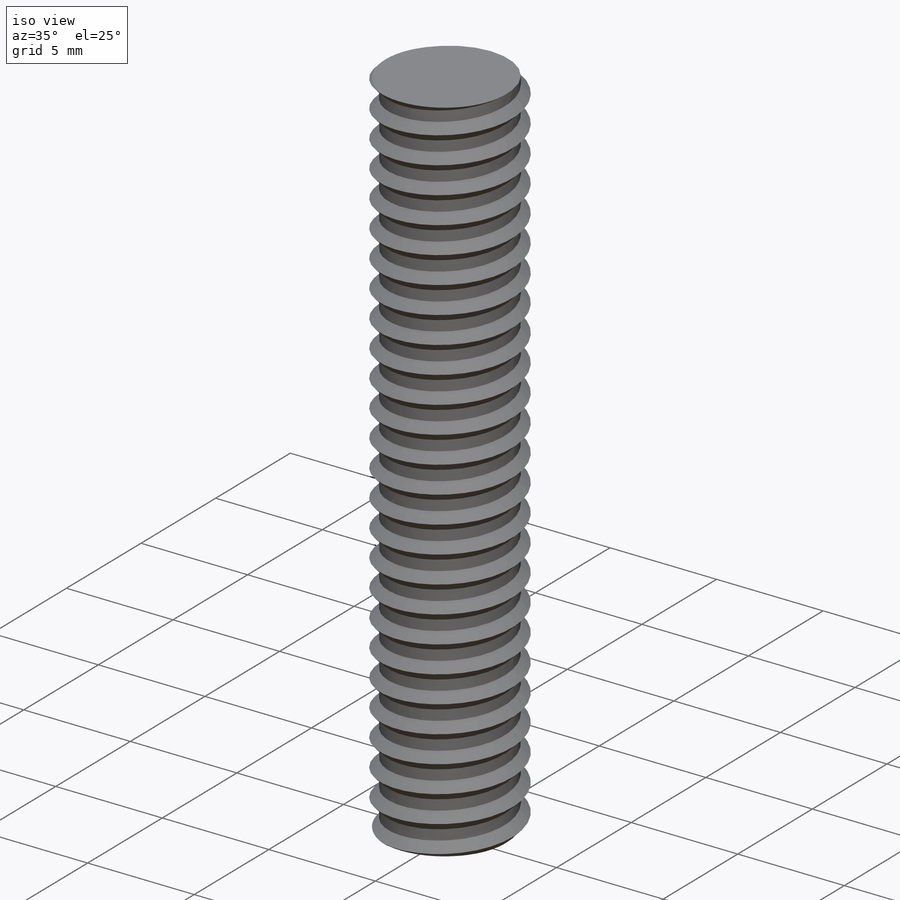
[diagram: iso view]
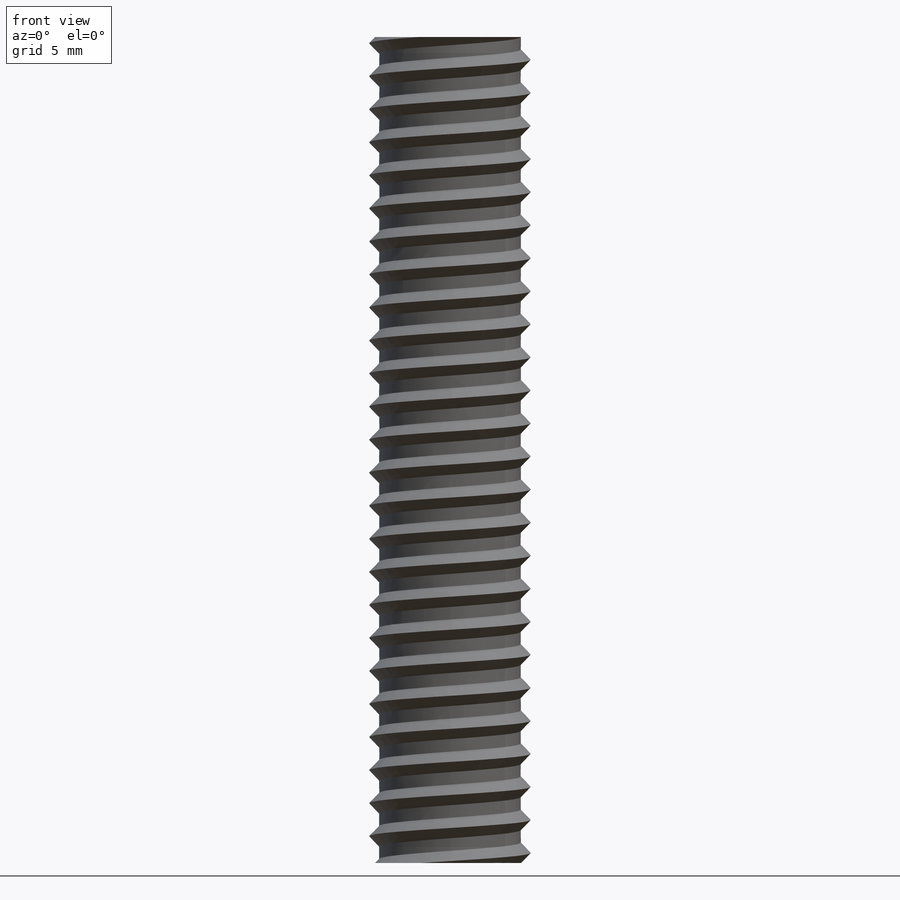
[diagram: front view]
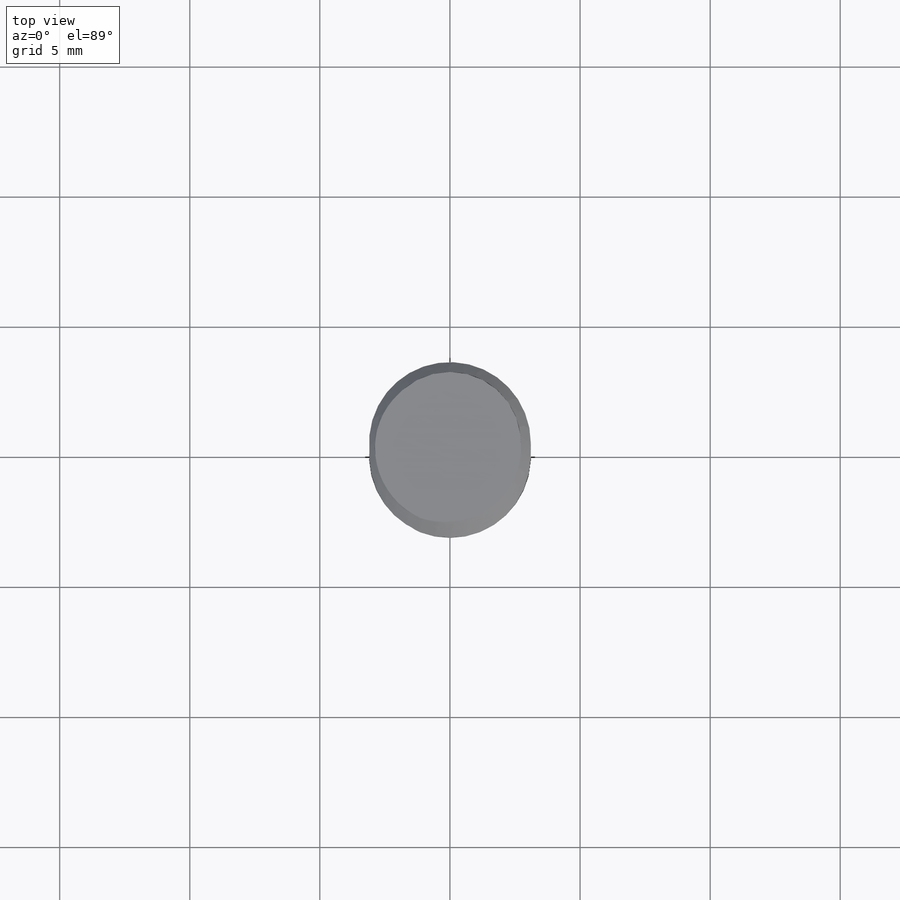
[diagram: top view]
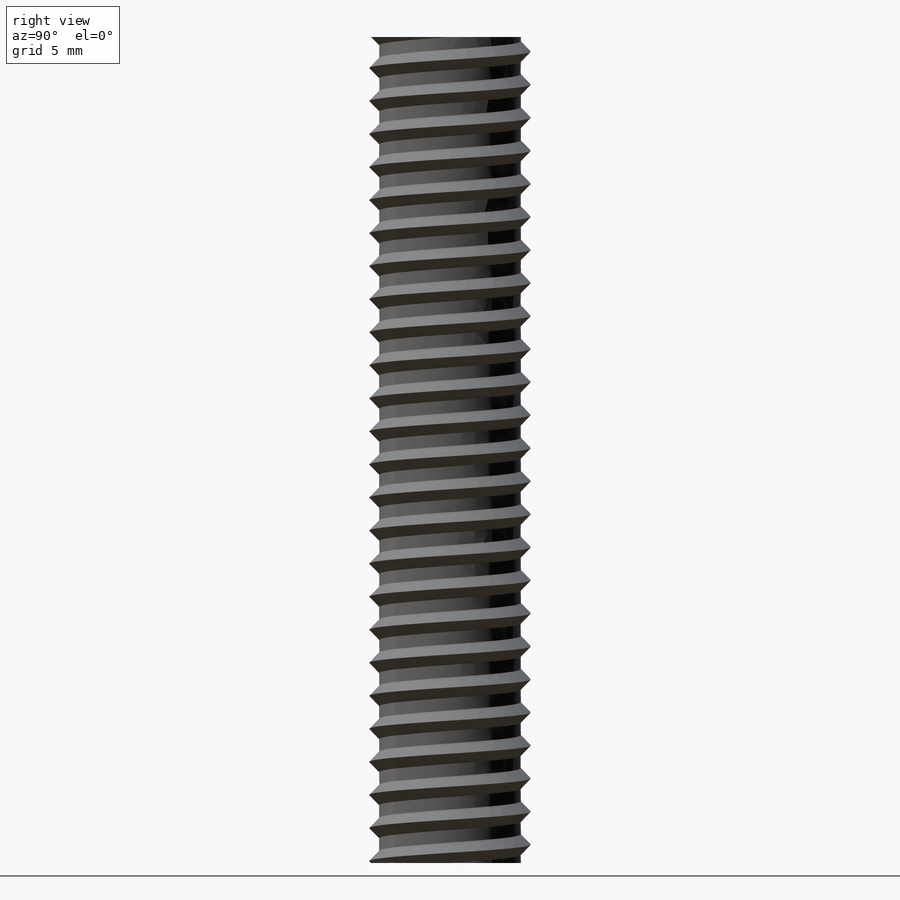
[diagram: right view]
SOLIDWORKS PART (.sldprt)
format: sldprt  version: not decoded by parser v0  size: 708,608 bytes
history: native  units: mm
features: sketch x7, cut_extrude x3, material x1, extrude x1, helix x1, sweep x1 (+11 scaffold rows collapsed)
feature tree (25):
  scaffold x11  (default folders/planes/origin — collapsed)
  material  "Material <not specified>"
  sketch  "Sketch1"  dims[D1=~5.44957mm]
  extrude  "Boss-Extrude1"  Depth=38.1mm
  sketch  "Sketch2"
  helix  "Helix/Spiral1"  Pitch=38.1mm
  sketch  "Sketch4"  dims[D1=~0.384175mm D2=0.7874mm D3=~2.724785mm]
  sweep  "Sweep1"
  sketch  "Sketch5"  dims[D1=6.35mm]
  cut_extrude  "Cut-Extrude1"  Depth=3.175mm
  sketch  "Sketch6"  dims[D1=6.35mm]
  cut_extrude  "Cut-Extrude3"  Depth=3.175mm
  sketch  "Sketch7"  dims[D1=6.35mm]
  cut_extrude  "Cut-Extrude4"  Depth=1.5875mm
  sketch  "Sketch8"  dims[D1=6.35mm]
decode coverage: 11 of 13 modeling features carry decoded parameters
note: ~ marks probable driven/reference dimensions
note: suppression state not decoded; provenance and decode notes live in map.json
